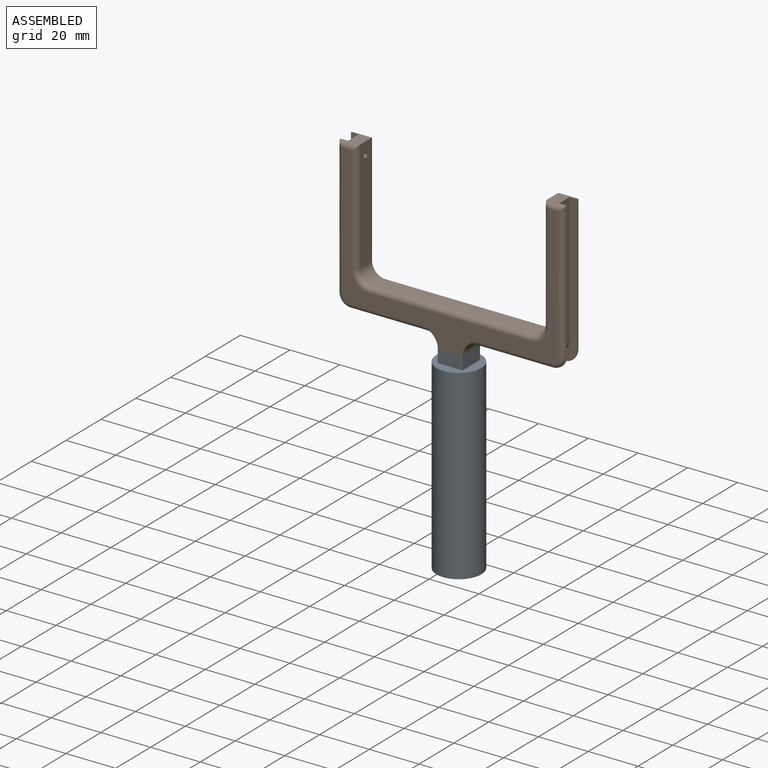
[diagram: assembled view]
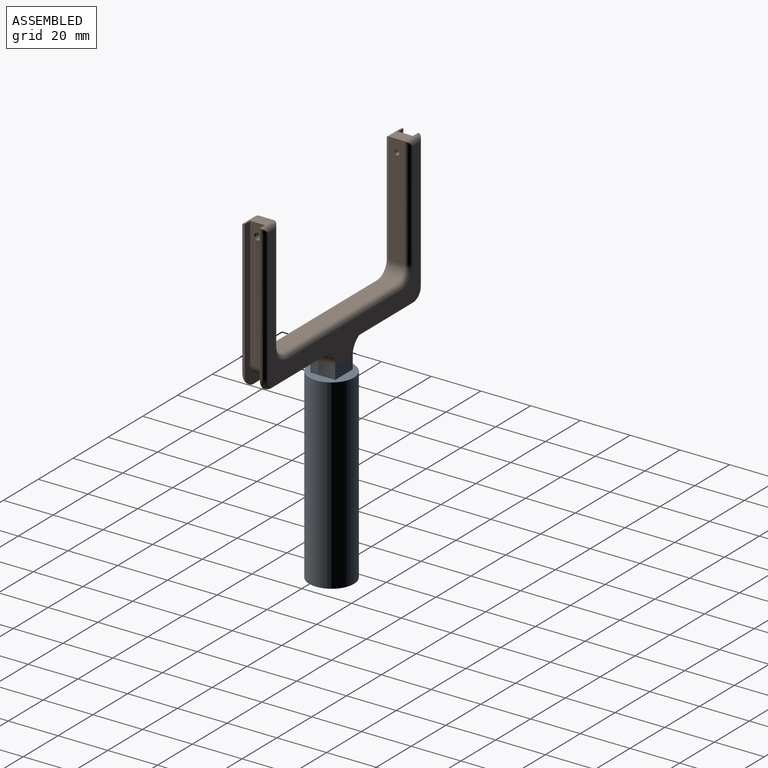
[diagram: assembled view, second angle]
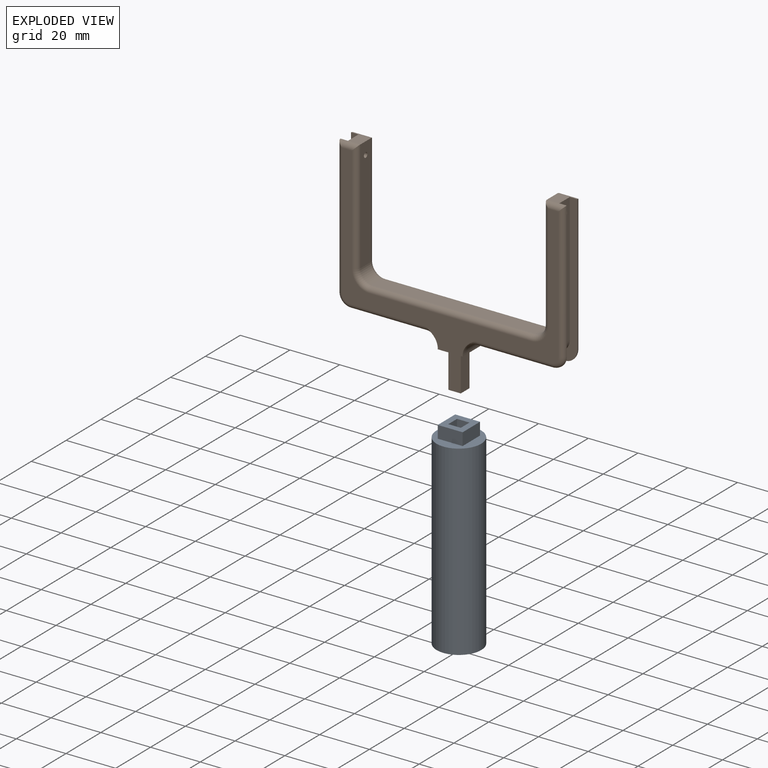
[diagram: exploded view]
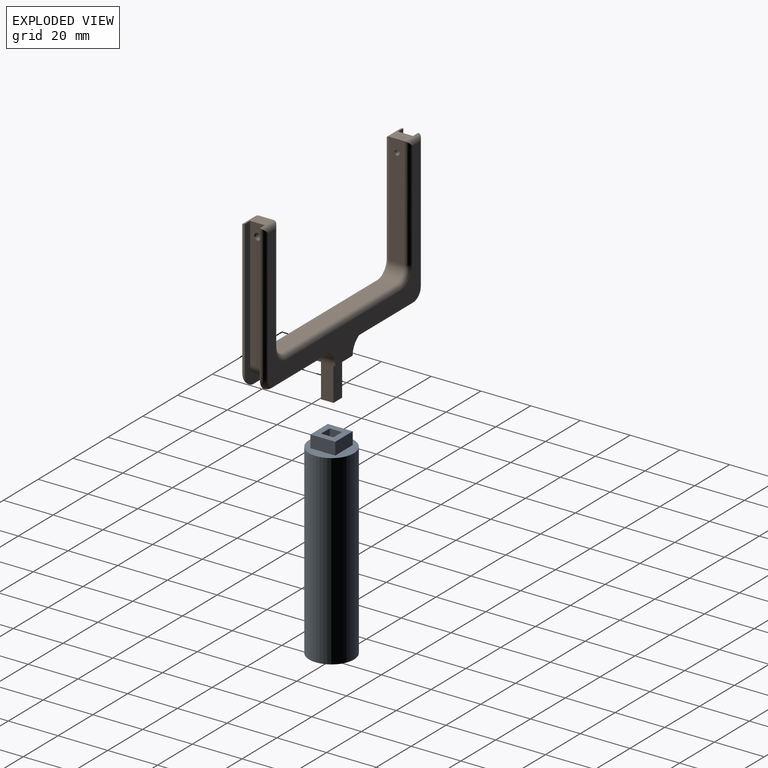
[diagram: exploded view, second angle]
ASSEMBLY  parts=2 mates=3
PART A: 12 faces, bbox 18x18x80 mm
  f0: plane 80x5mm, normal (0,-1,0), area 400mm2, adj f1,f7,f8,f9
  f1: plane 80x5mm, normal (-1,0,0), area 400mm2, adj f0,f2,f8,f9
  f2: plane 80x5mm, normal (0,1,0), area 400mm2, adj f1,f7,f8,f9
  f3: plane 10x5mm, normal (1,0,0), area 50mm2, adj f4,f6,f8,f11
  f4: plane 10x5mm, normal (0,1,0), area 50mm2, adj f3,f5,f8,f11
  f5: plane 10x5mm, normal (-1,0,0), area 50mm2, adj f4,f6,f8,f11
  f6: plane 10x5mm, normal (0,-1,0), area 50mm2, adj f3,f5,f8,f11
  f7: plane 80x5mm, normal (1,0,0), area 400mm2, adj f0,f2,f8,f9
  f8: plane 10x10mm, normal (0,0,1), area 75mm2, adj f0,f1,f2,f3,f4,f5,f6,f7
  f9: plane 18x18mm, normal (0,0,-1), area 229.5mm2, adj f0,f1,f2,f7,f10
  f10: cylinder r=9mm len=75mm, axis (0,0,-1), area 4241.2mm2, adj f9,f11
  f11: plane 18x18mm, normal (0,0,1), area 154.5mm2, adj f3,f4,f5,f6,f10
PART B: 71 faces, bbox 91.8x80x28.8 mm
  f0: plane 3x1mm, normal (-1,0,0), area 3mm2, adj f3,f43,f55,f69
  f1: plane 3x1mm, normal (1,0,0), area 3mm2, adj f3,f40,f58,f68
  f2: plane 6x5mm, normal (0,1,0), area 30mm2, adj f11,f21,f31,f62
  f3: plane 75x6mm, normal (0,-1,0), area 410mm2, adj f0,f1,f54,f55,f56,f57,f58,f59
  f4: plane 10x10mm, normal (0,-1,0), area 75mm2, adj f5,f6,f7,f8,f37,f38,f40,f43
  f5: plane 87x63mm, normal (0,0,1), area 1030mm2, adj f4,f9,f17,f18,f19,f20,f21,f22
  f6: plane 87x63mm, normal (0,0,-1), area 1030mm2, adj f4,f7,f8,f10,f27,f28,f29,f30
  f7: plane 2x0.29mm, normal (-1,0,0), area 0.2mm2, adj f4,f6,f44
  f8: plane 2x0.29mm, normal (1,0,0), area 0.2mm2, adj f4,f6,f41
  f9: cylinder r=2mm len=30.5mm, axis (-1,0,0), area 95.8mm2, adj f5,f42,f47,f54
  f10: cylinder r=2mm len=30.5mm, axis (1,0,0), area 95.8mm2, adj f6,f44,f48,f55
  f11: plane 45x6mm, normal (1,0,0), area 266.9mm2, adj f2,f16,f19,f29,f64
  f12: plane 6x5mm, normal (0,1,0), area 30mm2, adj f13,f24,f34,f60
  f13: plane 45x6mm, normal (-1,0,0), area 266.9mm2, adj f12,f15,f22,f32,f65
  f14: plane 65x6mm, normal (0,1,0), area 390mm2, adj f15,f16,f18,f28
  f15: cylinder r=5mm len=6mm, axis (0,0,-1), area 47.1mm2, adj f13,f14,f20,f30
  f16: cylinder r=5mm len=6mm, axis (0,0,1), area 47.1mm2, adj f11,f14,f17,f27
  f17: torus R=7mm, axis (0,0,1), area 28.3mm2, adj f5,f16,f18,f19
  f18: cylinder r=2mm len=65mm, axis (1,0,0), area 204.2mm2, adj f5,f14,f17,f20
  f19: cylinder r=2mm len=45mm, axis (0,-1,0), area 139.1mm2, adj f5,f11,f17,f21
  f20: torus R=7mm, axis (0,0,1), area 28.3mm2, adj f5,f15,f18,f22
  f21: cylinder r=2mm len=8mm, axis (1,0,0), area 20.6mm2, adj f2,f5,f19,f23,f54
  f22: cylinder r=2mm len=45mm, axis (0,1,0), area 139.1mm2, adj f5,f13,f20,f24
  f23: cylinder r=2mm len=55mm, axis (0,1,0), area 170.5mm2, adj f5,f21,f47,f54
  f24: cylinder r=2mm len=8mm, axis (1,0,0), area 20.6mm2, adj f5,f12,f22,f26,f58
  f25: cylinder r=2mm len=30.5mm, axis (-1,0,0), area 95.8mm2, adj f5,f39,f45,f58
  f26: cylinder r=2mm len=55mm, axis (0,-1,0), area 170.5mm2, adj f5,f24,f45,f58
  f27: torus R=7mm, axis (0,0,1), area 28.3mm2, adj f6,f16,f28,f29
  f28: cylinder r=2mm len=65mm, axis (-1,0,0), area 204.2mm2, adj f6,f14,f27,f30
  f29: cylinder r=2mm len=45mm, axis (0,1,0), area 139.1mm2, adj f6,f11,f27,f31
  f30: torus R=7mm, axis (0,0,1), area 28.3mm2, adj f6,f15,f28,f32
  f31: cylinder r=2mm len=8mm, axis (-1,0,0), area 20.6mm2, adj f2,f6,f29,f33,f55
  f32: cylinder r=2mm len=45mm, axis (0,-1,0), area 139.1mm2, adj f6,f13,f30,f34
  f33: cylinder r=2mm len=55mm, axis (0,-1,0), area 170.5mm2, adj f6,f31,f48,f55
  f34: cylinder r=2mm len=8mm, axis (-1,0,0), area 20.6mm2, adj f6,f12,f32,f36,f57
  f35: cylinder r=2mm len=30.5mm, axis (1,0,0), area 95.8mm2, adj f6,f41,f46,f57
  f36: cylinder r=2mm len=55mm, axis (0,1,0), area 170.5mm2, adj f6,f34,f46,f57
  f37: plane 2x0.29mm, normal (-1,0,0), area 0.2mm2, adj f4,f5,f42
  f38: plane 2x0.29mm, normal (1,0,0), area 0.2mm2, adj f4,f5,f39
  f39: torus R=7mm, axis (1,0,0), area 17.8mm2, adj f5,f25,f38,f40
  f40: cylinder r=5mm len=6mm, axis (0,0,-1), area 47.1mm2, adj f1,f4,f39,f41,f59,f70
  f41: torus R=7mm, axis (1,0,0), area 17.8mm2, adj f6,f8,f35,f40
  f42: torus R=7mm, axis (1,0,0), area 17.8mm2, adj f5,f9,f37,f43
  f43: cylinder r=5mm len=6mm, axis (0,0,1), area 47.1mm2, adj f0,f4,f42,f44,f56,f70
  f44: torus R=7mm, axis (1,0,0), area 17.8mm2, adj f6,f7,f10,f43
  f45: torus R=3mm, axis (0,0,1), area 21.1mm2, adj f5,f25,f26,f58
  f46: torus R=3mm, axis (0,0,1), area 21.1mm2, adj f6,f35,f36,f57
  f47: torus R=3mm, axis (0,0,1), area 21.1mm2, adj f5,f9,f23,f54
  f48: torus R=3mm, axis (0,0,1), area 21.1mm2, adj f6,f10,f33,f55
  f49: plane 15x5mm, normal (1,0,0), area 75mm2, adj f4,f50,f52,f53
  f50: plane 15x5mm, normal (0,0,1), area 75mm2, adj f4,f49,f51,f53
  f51: plane 15x5mm, normal (-1,0,0), area 75mm2, adj f4,f50,f52,f53
  f52: plane 15x5mm, normal (0,0,-1), area 75mm2, adj f4,f49,f51,f53
  f53: plane 5x5mm, normal (0,-1,0), area 25mm2, adj f49,f50,f51,f52
  f54: plane 60x35.5mm, normal (0,0,-1), area 277.5mm2, adj f3,f9,f21,f23,f47,f56,f62,f63
  f55: plane 60x35.5mm, normal (0,0,1), area 277.5mm2, adj f0,f3,f10,f31,f33,f48,f62,f63
  f56: plane 3x1mm, normal (-1,0,0), area 3mm2, adj f3,f43,f54,f68
  f57: plane 60x35.5mm, normal (0,0,1), area 277.5mm2, adj f3,f34,f35,f36,f46,f59,f60,f61
  f58: plane 60x35.5mm, normal (0,0,-1), area 277.5mm2, adj f1,f3,f24,f25,f26,f45,f60,f61
  f59: plane 3x1mm, normal (1,0,0), area 3mm2, adj f3,f40,f57,f69
  f60: plane 52x6mm, normal (1,0,0), area 304.9mm2, adj f12,f57,f58,f61,f67
  f61: cylinder r=5mm len=6mm, axis (0,0,1), area 47.1mm2, adj f3,f57,f58,f60
  f62: plane 52x6mm, normal (-1,0,0), area 304.9mm2, adj f2,f54,f55,f63,f66
  f63: cylinder r=5mm len=6mm, axis (0,0,1), area 47.1mm2, adj f3,f54,f55,f62
  f64: cylinder r=1mm len=4.5mm, axis (-1,0,0), area 28.3mm2, adj f11,f66
  f65: cylinder r=1mm len=4.5mm, axis (-1,0,0), area 28.3mm2, adj f13,f67
  f66: torus R=1.5mm, axis (1,0,0), area 5.8mm2, adj f62,f64
  f67: torus R=1.5mm, axis (1,0,0), area 5.8mm2, adj f60,f65
  f68: plane 20x3mm, normal (0,0,-1), area 60mm2, adj f1,f3,f56,f70
  f69: plane 20x3mm, normal (0,0,1), area 60mm2, adj f0,f3,f59,f70
  f70: plane 20x4mm, normal (0,1,0), area 80mm2, adj f40,f43,f68,f69
PLACE A at identity fixed
PLACE B rot(axis=(1,0,0),90deg) t=(0,5,115)mm
MATE planar B.f49 <-> A.f1  axis (1,0,0) through (2.5,0,72.5)mm
MATE planar A.f8 <-> B.f4  axis (0,0,1) through (-2.5,0,80)mm
MATE planar B.f50 <-> A.f2  axis (0,-1,0) through (2.5,-2.5,72.5)mm
